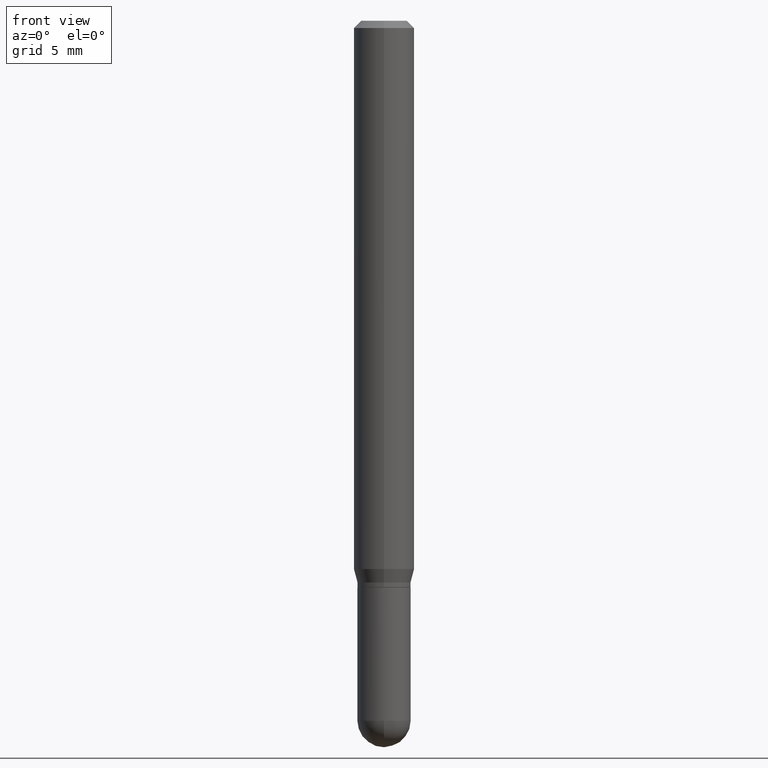
[diagram: clean part render]
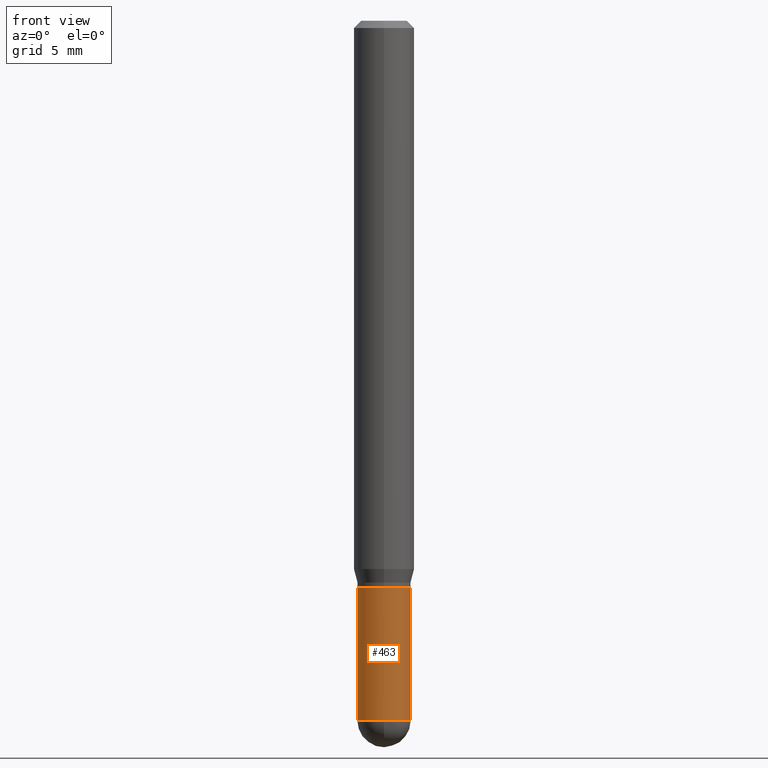
[diagram: same view with one face highlighted and labeled with its STEP entity id]
A machine part, front view. The second image highlights one B-rep face of the part: STEP entity #463.
In plain terms, the highlighted cylindrical surface (edge-blend (fillet) strip) has radius 1.397 mm, axis along (-0, 0, 1).
Its self-contained STEP definition (entity closure, byte-faithful):
#41 = DIRECTION ( 'NONE',  ( -2.445468806185136877E-29, 3.491481338843145188E-15, 1.000000000000000000 ) ) ;
#42 = ORIENTED_EDGE ( 'NONE', *, *, #295, .T. ) ;
#46 = DIRECTION ( 'NONE',  ( -2.445468806185136597E-29, 3.491481338843145583E-15, 1.000000000000000000 ) ) ;
#47 = CARTESIAN_POINT ( 'NONE',  ( 0.05500000000000000028, -4.469096113719225052E-15, -1.170000000000000151 ) ) ;
#48 = CARTESIAN_POINT ( 'NONE',  ( 2.861198503236610065E-29, -4.085033166446480067E-15, -1.170000000000000151 ) ) ;
#53 = VERTEX_POINT ( 'NONE', #47 ) ;
#55 = CARTESIAN_POINT ( 'NONE',  ( 0.05500000000000001416, -4.949174797810157466E-15, -1.445000000000000062 ) ) ;
#66 = AXIS2_PLACEMENT_3D ( 'NONE', #288, #388, #135 ) ;
#78 = VERTEX_POINT ( 'NONE', #442 ) ;
#79 = DIRECTION ( 'NONE',  ( 1.000000000000000000, -6.982962677686260400E-15, 0.000000000000000000 ) ) ;
#89 = VECTOR ( 'NONE', #327, 39.37007874015748143 ) ;
#102 = DIRECTION ( 'NONE',  ( 1.000000000000000000, -6.982962677686265922E-15, 4.876176775795935232E-29 ) ) ;
#107 = CIRCLE ( 'NONE', #293, 0.05500000000000000028 ) ;
#135 = DIRECTION ( 'NONE',  ( 1.000000000000000000, -6.982962677686260400E-15, 0.000000000000000000 ) ) ;
#138 = CARTESIAN_POINT ( 'NONE',  ( 0.000000000000000000, 0.000000000000000000, 0.000000000000000000 ) ) ;
#153 = EDGE_CURVE ( 'NONE', #78, #53, #107, .T. ) ;
#215 = EDGE_CURVE ( 'NONE', #379, #78, #277, .T. ) ;
#219 = CIRCLE ( 'NONE', #66, 0.05500000000000001416 ) ;
#230 = ORIENTED_EDGE ( 'NONE', *, *, #153, .F. ) ;
#247 = LINE ( 'NONE', #372, #89 ) ;
#254 = FACE_OUTER_BOUND ( 'NONE', #437, .T. ) ;
#269 = ORIENTED_EDGE ( 'NONE', *, *, #323, .T. ) ;
#275 = ORIENTED_EDGE ( 'NONE', *, *, #215, .F. ) ;
#277 = LINE ( 'NONE', #361, #418 ) ;
#288 = CARTESIAN_POINT ( 'NONE',  ( 3.533702424937522517E-29, -5.045190534628345684E-15, -1.445000000000000062 ) ) ;
#291 = DIRECTION ( 'NONE',  ( -2.445468806185136597E-29, 3.491481338843145583E-15, 1.000000000000000000 ) ) ;
#293 = AXIS2_PLACEMENT_3D ( 'NONE', #48, #451, #474 ) ;
#295 = EDGE_CURVE ( 'NONE', #379, #354, #512, .T. ) ;
#296 = VERTEX_POINT ( 'NONE', #55 ) ;
#323 = EDGE_CURVE ( 'NONE', #296, #53, #247, .T. ) ;
#327 = DIRECTION ( 'NONE',  ( -2.445468806185136877E-29, 3.491481338843145188E-15, 1.000000000000000000 ) ) ;
#336 = CYLINDRICAL_SURFACE ( 'NONE', #488, 0.05500000000000001416 ) ;
#354 = VERTEX_POINT ( 'NONE', #501 ) ;
#361 = CARTESIAN_POINT ( 'NONE',  ( -0.05500000000000001416, 3.907985046680552028E-16, -2.705414299640198712E-30 ) ) ;
#372 = CARTESIAN_POINT ( 'NONE',  ( 0.05500000000000001416, -3.840629472727447381E-16, 2.681897226687765177E-30 ) ) ;
#379 = VERTEX_POINT ( 'NONE', #497 ) ;
#386 = EDGE_CURVE ( 'NONE', #354, #296, #219, .T. ) ;
#388 = DIRECTION ( 'NONE',  ( -2.445468806185136597E-29, 3.491481338843145583E-15, 1.000000000000000000 ) ) ;
#407 = CARTESIAN_POINT ( 'NONE',  ( 3.533702424937522517E-29, -5.045190534628345684E-15, -1.445000000000000062 ) ) ;
#409 = AXIS2_PLACEMENT_3D ( 'NONE', #407, #46, #79 ) ;
#418 = VECTOR ( 'NONE', #41, 39.37007874015748143 ) ;
#437 = EDGE_LOOP ( 'NONE', ( #275, #42, #509, #269, #230 ) ) ;
#442 = CARTESIAN_POINT ( 'NONE',  ( -0.05500000000000000028, -4.174313345869358610E-15, -1.170000000000000151 ) ) ;
#451 = DIRECTION ( 'NONE',  ( -2.445468806185136597E-29, 3.491481338843145583E-15, 1.000000000000000000 ) ) ;
#463 = ADVANCED_FACE ( 'NONE', ( #254 ), #336, .T. ) ;
#474 = DIRECTION ( 'NONE',  ( 1.000000000000000000, -6.982962677686262766E-15, 0.000000000000000000 ) ) ;
#488 = AXIS2_PLACEMENT_3D ( 'NONE', #138, #291, #102 ) ;
#497 = CARTESIAN_POINT ( 'NONE',  ( -0.05500000000000001416, -4.174313345869358610E-15, -1.445000000000000062 ) ) ;
#501 = CARTESIAN_POINT ( 'NONE',  ( -3.907985046680199999E-16, -0.05500000000000507955, -1.444999999999999840 ) ) ;
#509 = ORIENTED_EDGE ( 'NONE', *, *, #386, .T. ) ;
#512 = CIRCLE ( 'NONE', #409, 0.05500000000000001416 ) ;